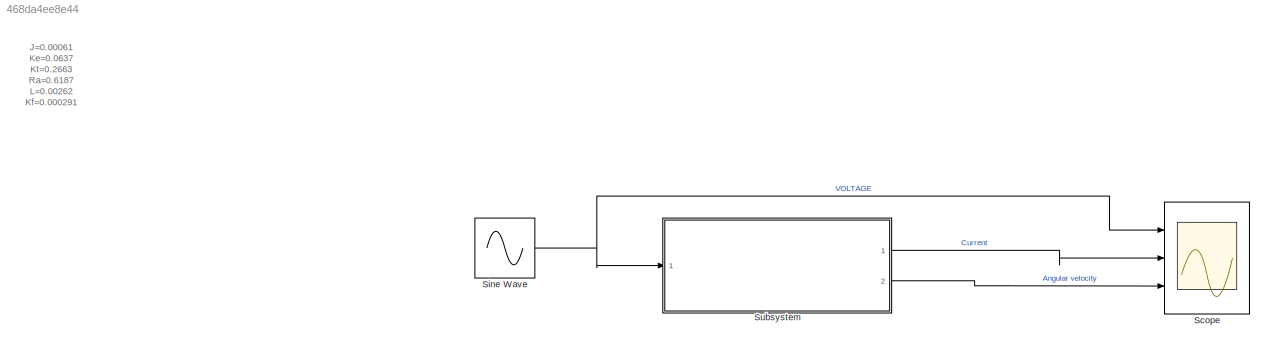
MODEL slx_468da4ee8e44
KIND model
CONFIG AbsTol = auto
CONFIG EnableMultiTasking = off
CONFIG FixedStep = auto
CONFIG MaxStep = auto
CONFIG MinStep = auto
CONFIG RelTol = 1e-3
CONFIG SampleTimeConstraint = Unconstrained
CONFIG SolverName = VariableStepAuto
CONFIG StartTime = 0.0
CONFIG StopTime = 10.0
BLOCK [Scope] Scope
  Floating = off
  NumInputPorts = 3
  Ports = [3]
  ScopeSpecificationString = Simulink.scopes.TimeScopeBlockCfg('CurrentConfiguration', extmgr.ConfigurationSet(extmgr.Configuration('Core','General UI',true),extmgr.Configuration('Core','Source UI',true),extmgr.Configuration('Sources','WiredSimulink',true),extmgr.Configuration('Visuals','Time Domain',true,'SerializedDisplays',{struct('MinYLimReal','-1.24997','MaxYLimReal','1.24999','YLabelReal','','MinYLimMag','0.00000','MaxY...<+2718ch>
BLOCK [Sin] Sine Wave
  Ports = [0, 1]
  SampleTime = 0
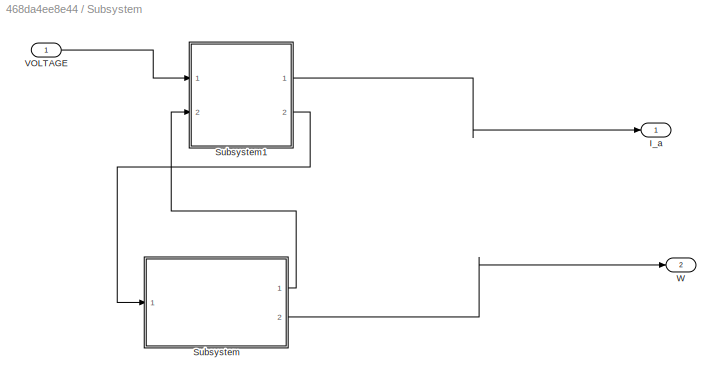
BLOCK [SubSystem] Subsystem
  Ports = [1, 2]
  RequestExecContextInheritance = off
  TreatAsAtomicUnit = on
BLOCK [Outport] Subsystem/I_a
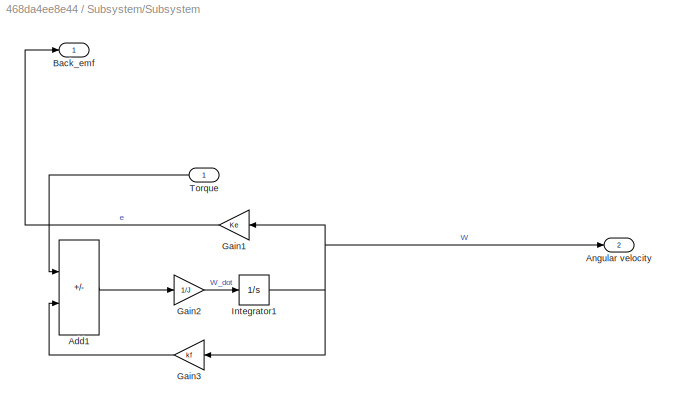
BLOCK [SubSystem] Subsystem/Subsystem
  Ports = [1, 2]
  RequestExecContextInheritance = off
BLOCK [Sum] Subsystem/Subsystem/Add1
  IconShape = rectangular
  Inputs = +-
  Ports = [2, 1]
BLOCK [Outport] Subsystem/Subsystem/Angular velocity
  Port = 2
BLOCK [Outport] Subsystem/Subsystem/Back_emf
BLOCK [Gain] Subsystem/Subsystem/Gain1
  Gain = Ke
  NameLocation = top
BLOCK [Gain] Subsystem/Subsystem/Gain2
  Gain = 1/J
BLOCK [Gain] Subsystem/Subsystem/Gain3
  Gain = kf
  NameLocation = top
BLOCK [Integrator] Subsystem/Subsystem/Integrator1
  Ports = [1, 1]
BLOCK [Inport] Subsystem/Subsystem/Torque
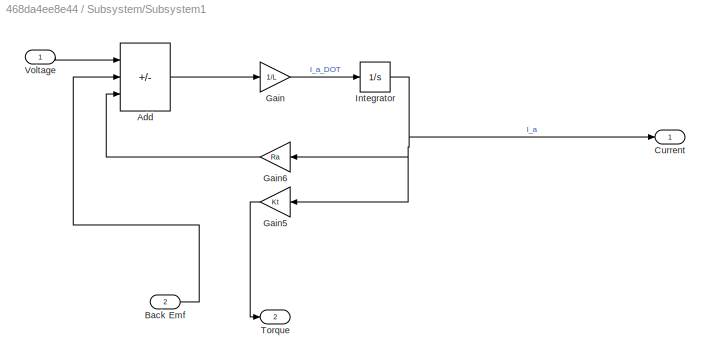
BLOCK [SubSystem] Subsystem/Subsystem1
  Ports = [2, 2]
  RequestExecContextInheritance = off
BLOCK [Sum] Subsystem/Subsystem1/Add
  IconShape = rectangular
  Inputs = +--
  Ports = [3, 1]
BLOCK [Inport] Subsystem/Subsystem1/Back Emf
  Port = 2
BLOCK [Outport] Subsystem/Subsystem1/Current
BLOCK [Gain] Subsystem/Subsystem1/Gain
  Gain = 1/L
BLOCK [Gain] Subsystem/Subsystem1/Gain5
  Gain = Kt
  NameLocation = top
BLOCK [Gain] Subsystem/Subsystem1/Gain6
  Gain = Ra
  NameLocation = top
BLOCK [Integrator] Subsystem/Subsystem1/Integrator
  Ports = [1, 1]
BLOCK [Outport] Subsystem/Subsystem1/Torque
  Port = 2
BLOCK [Inport] Subsystem/Subsystem1/Voltage
BLOCK [Inport] Subsystem/VOLTAGE
BLOCK [Outport] Subsystem/W
  Port = 2
ANNOTATION (root): J=0.00061 Ke=0.0637 Kt=0.2663 Ra=0.6187 L=0.00262 Kf=0.000291 $V=R_ai_a+L\frac{di_a}{dt}+e_b \\J\frac{dw}{dt}=T-K_fw \\T_d=k_t*i_a \\e_b=K_e*w$ refrence: 1) https://www.hindawi.com/journals/mpe/2015/879581/#introduction
NET Sine Wave:1 -> Scope:1, Subsystem:1
LINE Subsystem/Subsystem/Add1:1 -> Subsystem/Subsystem/Gain2:1
LINE Subsystem/Subsystem/Gain1:1 -> Subsystem/Subsystem/Back_emf:1
LINE Subsystem/Subsystem/Gain2:1 -> Subsystem/Subsystem/Integrator1:1
LINE Subsystem/Subsystem/Gain3:1 -> Subsystem/Subsystem/Add1:2
NET Subsystem/Subsystem/Integrator1:1 -> Subsystem/Subsystem/Angular velocity:1, Subsystem/Subsystem/Gain1:1, Subsystem/Subsystem/Gain3:1
LINE Subsystem/Subsystem/Torque:1 -> Subsystem/Subsystem/Add1:1
LINE Subsystem/Subsystem1/Add:1 -> Subsystem/Subsystem1/Gain:1
LINE Subsystem/Subsystem1/Back Emf:1 -> Subsystem/Subsystem1/Add:2
LINE Subsystem/Subsystem1/Gain5:1 -> Subsystem/Subsystem1/Torque:1
LINE Subsystem/Subsystem1/Gain6:1 -> Subsystem/Subsystem1/Add:3
LINE Subsystem/Subsystem1/Gain:1 -> Subsystem/Subsystem1/Integrator:1
NET Subsystem/Subsystem1/Integrator:1 -> Subsystem/Subsystem1/Current:1, Subsystem/Subsystem1/Gain5:1, Subsystem/Subsystem1/Gain6:1
LINE Subsystem/Subsystem1/Voltage:1 -> Subsystem/Subsystem1/Add:1
LINE Subsystem/Subsystem1:1 -> Subsystem/I_a:1
LINE Subsystem/Subsystem1:2 -> Subsystem/Subsystem:1
LINE Subsystem/Subsystem:1 -> Subsystem/Subsystem1:2
LINE Subsystem/Subsystem:2 -> Subsystem/W:1
LINE Subsystem/VOLTAGE:1 -> Subsystem/Subsystem1:1
LINE Subsystem:1 -> Scope:2
LINE Subsystem:2 -> Scope:3
note: NET lines group one-source signal fan-out (src -> all destinations, sorted); 1:1 wires keep LINE
